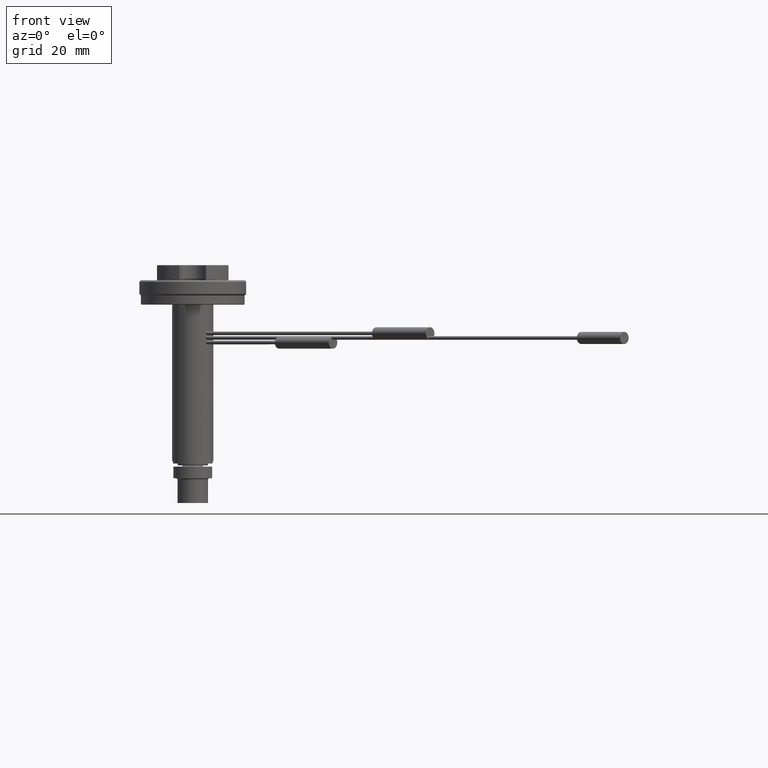
[diagram: clean part render]
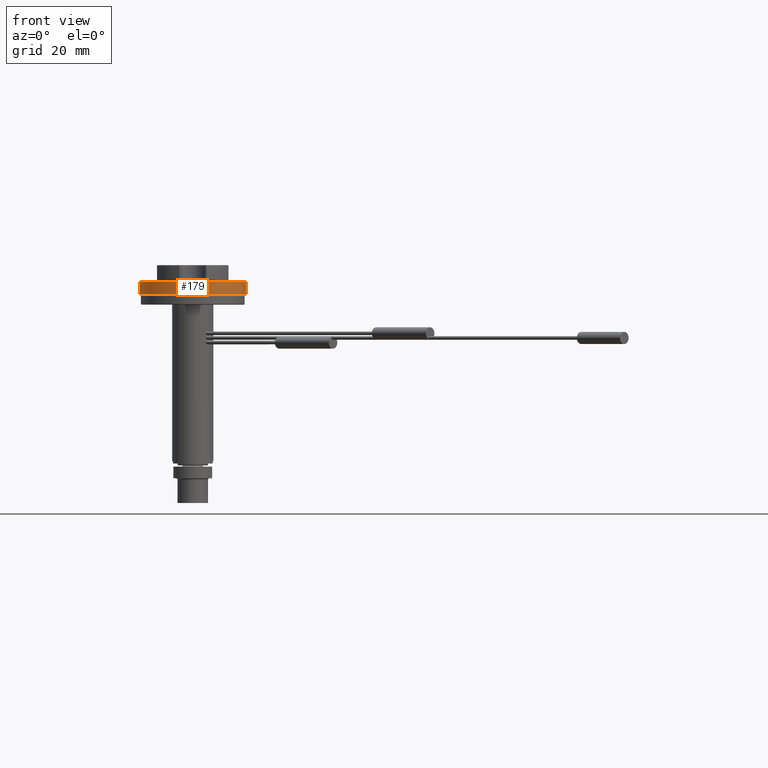
[diagram: same view with one face highlighted and labeled with its STEP entity id]
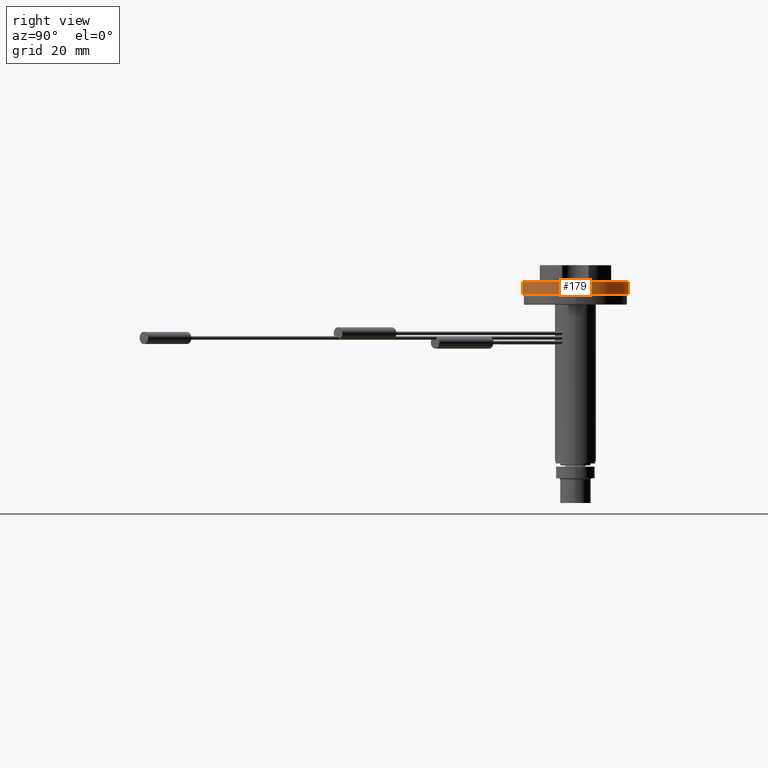
[diagram: same view with one face highlighted and labeled with its STEP entity id]
A machine part, front view. The second image highlights one B-rep face of the part: STEP entity #179.
A second angle (right view) of the same face is appended — the face is thin or edge-on in the first view.
In plain terms, the highlighted cylindrical surface (bore or boss wall) has radius 17.5 mm, axis along (0, 0, 1).
Its self-contained STEP definition (entity closure, byte-faithful):
#179=ADVANCED_FACE('',(#396,#397),#230,.T.);
#230=CYLINDRICAL_SURFACE('',#1116,17.5);
#304=CIRCLE('',#1113,17.5);
#305=CIRCLE('',#1115,17.5);
#396=FACE_BOUND('',#523,.T.);
#397=FACE_BOUND('',#524,.T.);
#523=EDGE_LOOP('',(#705));
#524=EDGE_LOOP('',(#706));
#705=ORIENTED_EDGE('',*,*,#962,.T.);
#706=ORIENTED_EDGE('',*,*,#961,.T.);
#863=VERTEX_POINT('',#1905);
#864=VERTEX_POINT('',#1908);
#961=EDGE_CURVE('',#863,#863,#304,.T.);
#962=EDGE_CURVE('',#864,#864,#305,.T.);
#1113=AXIS2_PLACEMENT_3D('',#1904,#1401,#1402);
#1115=AXIS2_PLACEMENT_3D('',#1907,#1405,#1406);
#1116=AXIS2_PLACEMENT_3D('',#1909,#1407,#1408);
#1401=DIRECTION('',(0.,0.,-1.));
#1402=DIRECTION('',(1.,0.,0.));
#1405=DIRECTION('',(0.,0.,1.));
#1406=DIRECTION('',(-1.,0.,0.));
#1407=DIRECTION('',(0.,0.,1.));
#1408=DIRECTION('',(1.,0.,0.));
#1904=CARTESIAN_POINT('',(0.,0.,-5.50459938319545));
#1905=CARTESIAN_POINT('',(17.5,0.,-5.50459938319545));
#1907=CARTESIAN_POINT('',(0.,0.,-9.50459938319545));
#1908=CARTESIAN_POINT('',(-17.5,0.,-9.50459938319545));
#1909=CARTESIAN_POINT('',(0.,0.,0.));